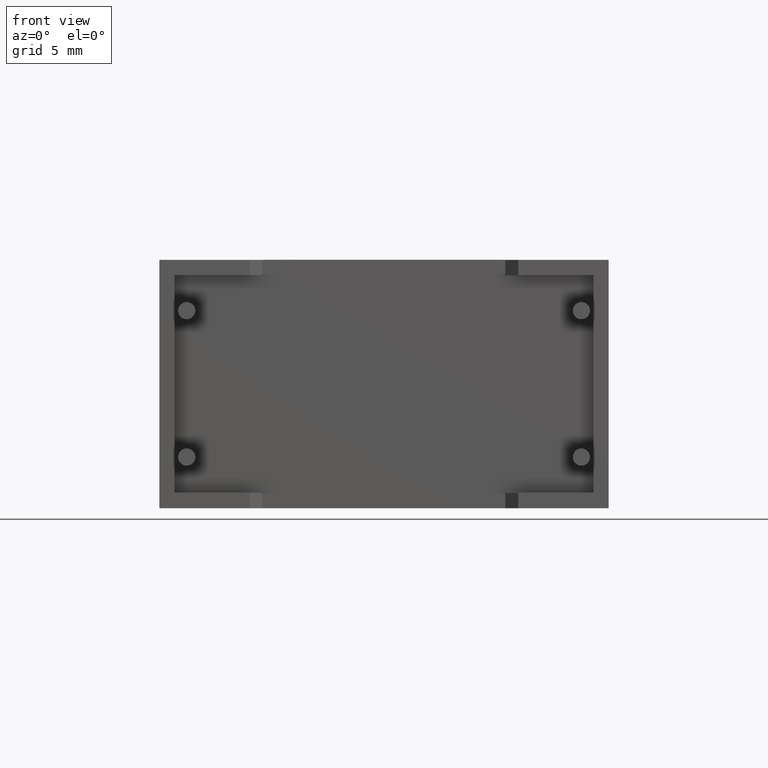
[diagram: clean part render]
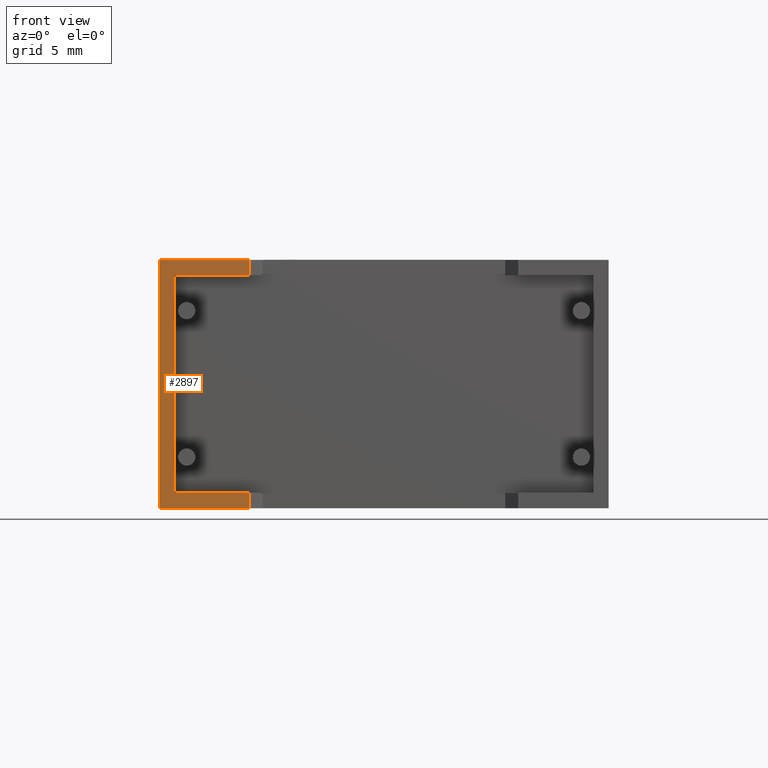
[diagram: same view with one face highlighted and labeled with its STEP entity id]
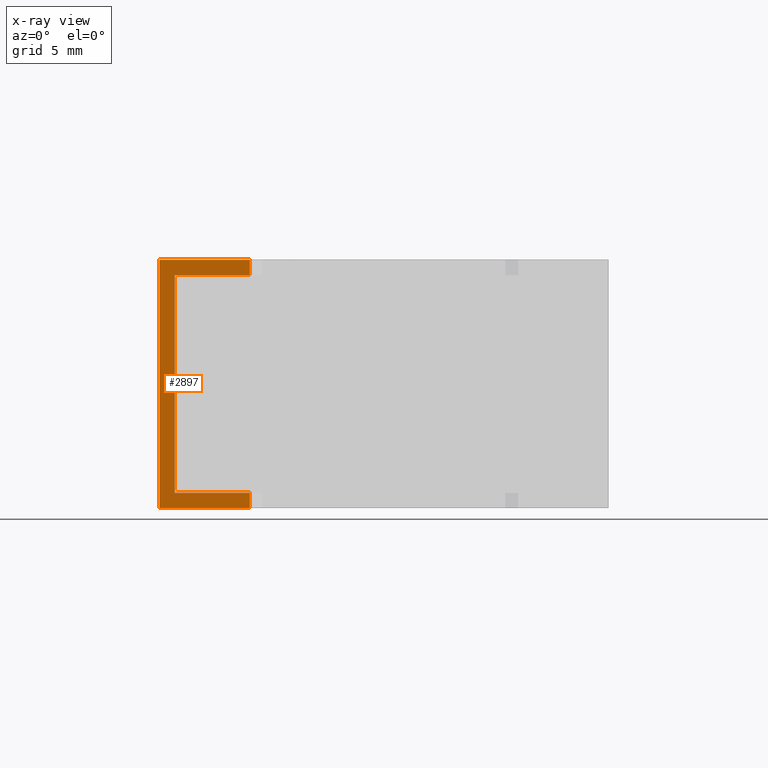
[diagram: x-ray of the same camera — body ghosted, the highlighted face saturated]
A machine part, front view. The second image highlights one B-rep face of the part: STEP entity #2897.
The next image is the same camera in x-ray: the body ghosted, the highlighted face saturated — about 0% of this face is hidden behind the body in this view.
In plain terms, the highlighted planar face has unit normal (0, 1, 0).
Its self-contained STEP definition (entity closure, byte-faithful):
#115 = ORIENTED_EDGE ( 'NONE', *, *, #1809, .T. ) ;
#164 = EDGE_CURVE ( 'NONE', #1749, #1561, #2342, .T. ) ;
#188 = LINE ( 'NONE', #1137, #2950 ) ;
#215 = VERTEX_POINT ( 'NONE', #2161 ) ;
#226 = CARTESIAN_POINT ( 'NONE',  ( 0.000000000000000000, 0.000000000000000000, 0.000000000000000000 ) ) ;
#286 = FACE_OUTER_BOUND ( 'NONE', #1552, .T. ) ;
#297 = CARTESIAN_POINT ( 'NONE',  ( 0.000000000000000000, 0.000000000000000000, 17.30000000000000071 ) ) ;
#416 = CARTESIAN_POINT ( 'NONE',  ( 6.300000000000000711, 1.543054966925665273E-15, 0.000000000000000000 ) ) ;
#433 = CARTESIAN_POINT ( 'NONE',  ( 6.300000000000000711, 1.543054966925665273E-15, 17.30000000000000071 ) ) ;
#451 = VERTEX_POINT ( 'NONE', #807 ) ;
#453 = VERTEX_POINT ( 'NONE', #1785 ) ;
#473 = DIRECTION ( 'NONE',  ( -0.000000000000000000, -0.000000000000000000, 1.000000000000000000 ) ) ;
#521 = LINE ( 'NONE', #1292, #2501 ) ;
#547 = DIRECTION ( 'NONE',  ( -0.000000000000000000, -0.000000000000000000, -1.000000000000000000 ) ) ;
#595 = VECTOR ( 'NONE', #885, 1000.000000000000000 ) ;
#613 = CARTESIAN_POINT ( 'NONE',  ( 1.063431000000000015, 0.000000000000000000, 1.063431000000000015 ) ) ;
#628 = LINE ( 'NONE', #613, #2048 ) ;
#688 = ORIENTED_EDGE ( 'NONE', *, *, #164, .F. ) ;
#743 = CARTESIAN_POINT ( 'NONE',  ( 6.300000000000000711, 1.543054966925665273E-15, 0.000000000000000000 ) ) ;
#807 = CARTESIAN_POINT ( 'NONE',  ( 1.063431000000000015, 0.000000000000000000, 1.063431000000000015 ) ) ;
#821 = CARTESIAN_POINT ( 'NONE',  ( 0.000000000000000000, 0.000000000000000000, 17.30000000000000071 ) ) ;
#885 = DIRECTION ( 'NONE',  ( 1.000000000000000000, 0.000000000000000000, 0.000000000000000000 ) ) ;
#990 = VERTEX_POINT ( 'NONE', #226 ) ;
#1036 = DIRECTION ( 'NONE',  ( 0.000000000000000000, 1.000000000000000000, 0.000000000000000000 ) ) ;
#1093 = CARTESIAN_POINT ( 'NONE',  ( 0.000000000000000000, 0.000000000000000000, 17.30000000000000071 ) ) ;
#1110 = CARTESIAN_POINT ( 'NONE',  ( 0.000000000000000000, 0.000000000000000000, 0.000000000000000000 ) ) ;
#1137 = CARTESIAN_POINT ( 'NONE',  ( 1.063431000000000015, 0.000000000000000000, 16.23656899999999936 ) ) ;
#1188 = AXIS2_PLACEMENT_3D ( 'NONE', #297, #1036, #2772 ) ;
#1240 = ORIENTED_EDGE ( 'NONE', *, *, #2152, .T. ) ;
#1292 = CARTESIAN_POINT ( 'NONE',  ( 30.23656900000000292, 0.000000000000000000, 16.23656899999999936 ) ) ;
#1352 = CARTESIAN_POINT ( 'NONE',  ( 6.300000000000000711, 1.543054966925665273E-15, 1.063431000000000015 ) ) ;
#1355 = EDGE_CURVE ( 'NONE', #451, #1721, #628, .T. ) ;
#1372 = LINE ( 'NONE', #1110, #595 ) ;
#1420 = EDGE_CURVE ( 'NONE', #215, #1561, #1675, .T. ) ;
#1421 = DIRECTION ( 'NONE',  ( 0.000000000000000000, 0.000000000000000000, -1.000000000000000000 ) ) ;
#1460 = VECTOR ( 'NONE', #547, 1000.000000000000000 ) ;
#1552 = EDGE_LOOP ( 'NONE', ( #115, #1240, #2715, #2946, #2113, #2460, #688, #2571 ) ) ;
#1561 = VERTEX_POINT ( 'NONE', #433 ) ;
#1585 = PLANE ( 'NONE',  #1188 ) ;
#1605 = DIRECTION ( 'NONE',  ( 1.000000000000000000, 0.000000000000000000, 0.000000000000000000 ) ) ;
#1675 = LINE ( 'NONE', #743, #3069 ) ;
#1721 = VERTEX_POINT ( 'NONE', #1352 ) ;
#1749 = VERTEX_POINT ( 'NONE', #821 ) ;
#1780 = CARTESIAN_POINT ( 'NONE',  ( 1.063431000000000015, 0.000000000000000000, 16.23656899999999936 ) ) ;
#1785 = CARTESIAN_POINT ( 'NONE',  ( 6.300000000000000711, 1.543054966925665273E-15, 0.000000000000000000 ) ) ;
#1809 = EDGE_CURVE ( 'NONE', #990, #453, #1372, .T. ) ;
#1887 = CARTESIAN_POINT ( 'NONE',  ( 0.000000000000000000, 0.000000000000000000, 17.30000000000000071 ) ) ;
#2028 = VECTOR ( 'NONE', #2115, 1000.000000000000000 ) ;
#2048 = VECTOR ( 'NONE', #1605, 1000.000000000000000 ) ;
#2113 = ORIENTED_EDGE ( 'NONE', *, *, #2800, .F. ) ;
#2115 = DIRECTION ( 'NONE',  ( -0.000000000000000000, -0.000000000000000000, 1.000000000000000000 ) ) ;
#2117 = EDGE_CURVE ( 'NONE', #1749, #990, #2993, .T. ) ;
#2152 = EDGE_CURVE ( 'NONE', #453, #1721, #2617, .T. ) ;
#2161 = CARTESIAN_POINT ( 'NONE',  ( 6.300000000000000711, 1.543054966925665273E-15, 16.23656899999999936 ) ) ;
#2230 = DIRECTION ( 'NONE',  ( -1.000000000000000000, 0.000000000000000000, 0.000000000000000000 ) ) ;
#2342 = LINE ( 'NONE', #1887, #2902 ) ;
#2459 = VERTEX_POINT ( 'NONE', #1780 ) ;
#2460 = ORIENTED_EDGE ( 'NONE', *, *, #1420, .T. ) ;
#2501 = VECTOR ( 'NONE', #2230, 1000.000000000000000 ) ;
#2571 = ORIENTED_EDGE ( 'NONE', *, *, #2117, .T. ) ;
#2608 = DIRECTION ( 'NONE',  ( 1.000000000000000000, 0.000000000000000000, 0.000000000000000000 ) ) ;
#2617 = LINE ( 'NONE', #416, #2028 ) ;
#2715 = ORIENTED_EDGE ( 'NONE', *, *, #1355, .F. ) ;
#2772 = DIRECTION ( 'NONE',  ( 0.000000000000000000, -0.000000000000000000, 1.000000000000000000 ) ) ;
#2800 = EDGE_CURVE ( 'NONE', #215, #2459, #521, .T. ) ;
#2897 = ADVANCED_FACE ( 'NONE', ( #286 ), #1585, .F. ) ;
#2902 = VECTOR ( 'NONE', #2608, 1000.000000000000000 ) ;
#2946 = ORIENTED_EDGE ( 'NONE', *, *, #3064, .F. ) ;
#2950 = VECTOR ( 'NONE', #1421, 1000.000000000000000 ) ;
#2993 = LINE ( 'NONE', #1093, #1460 ) ;
#3064 = EDGE_CURVE ( 'NONE', #2459, #451, #188, .T. ) ;
#3069 = VECTOR ( 'NONE', #473, 1000.000000000000000 ) ;